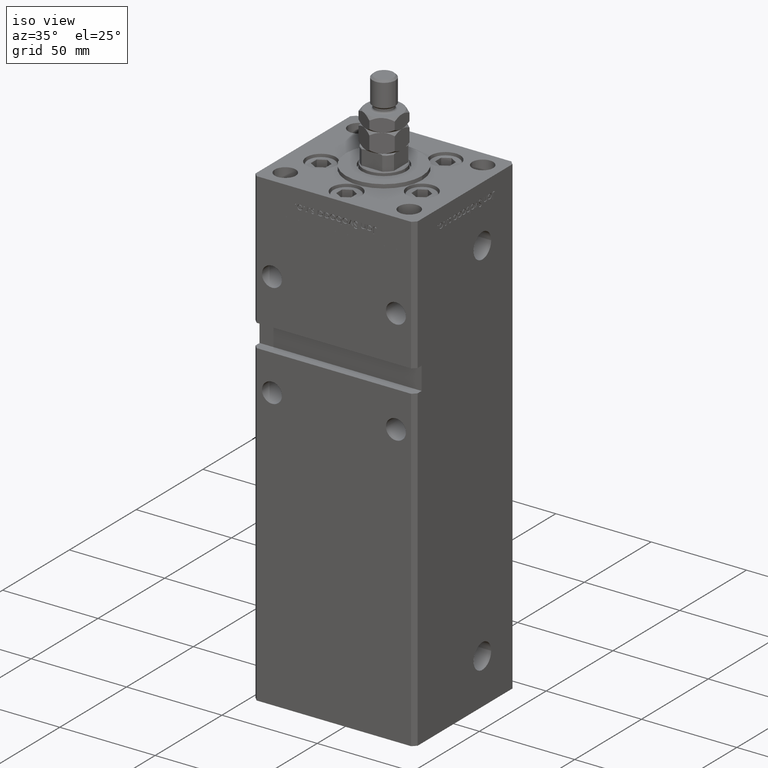
[diagram: clean part render]
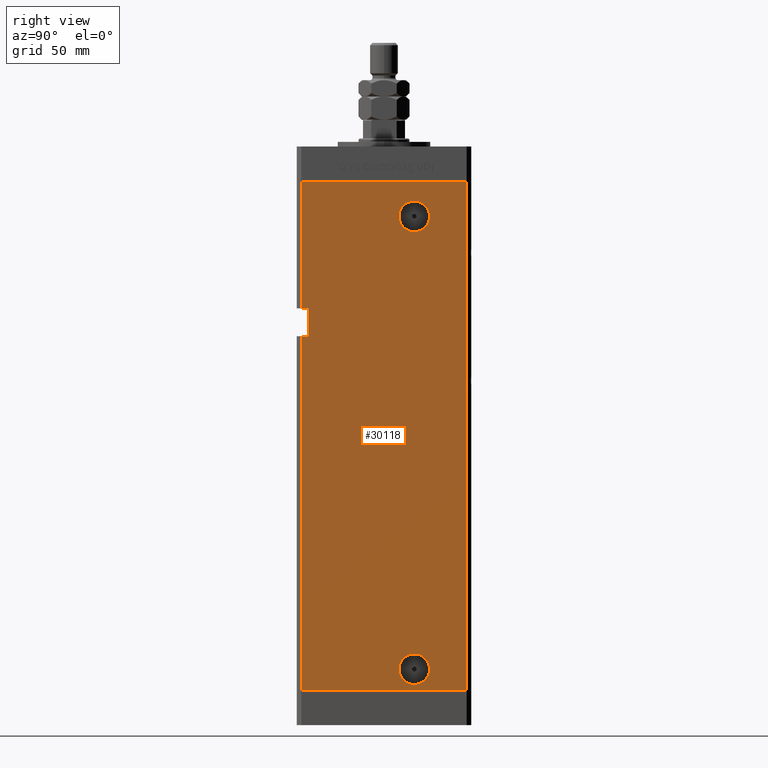
[diagram: tour spotlight — one face highlighted and labeled with its STEP entity id]
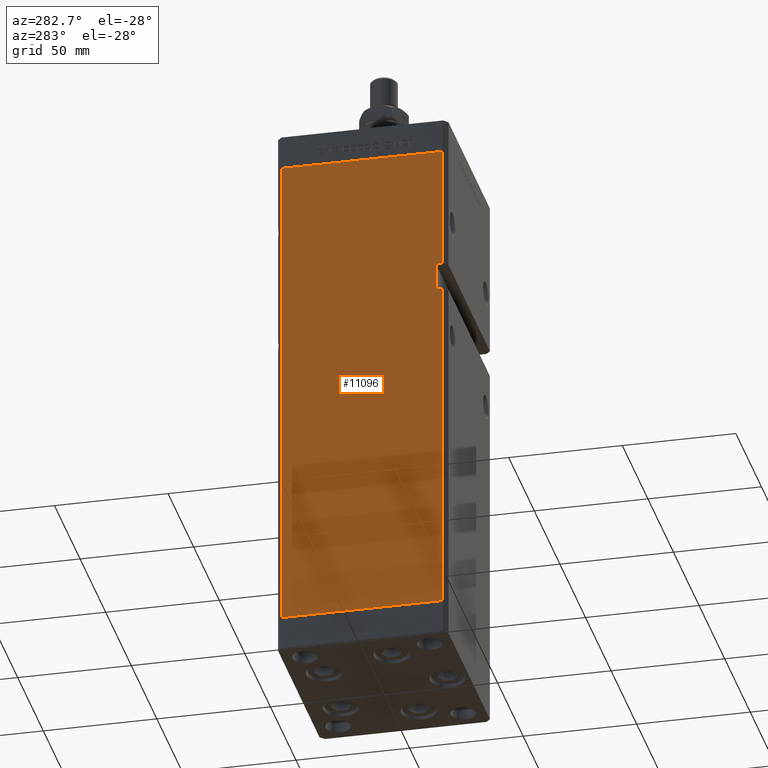
[diagram: tour spotlight — one face highlighted and labeled with its STEP entity id]
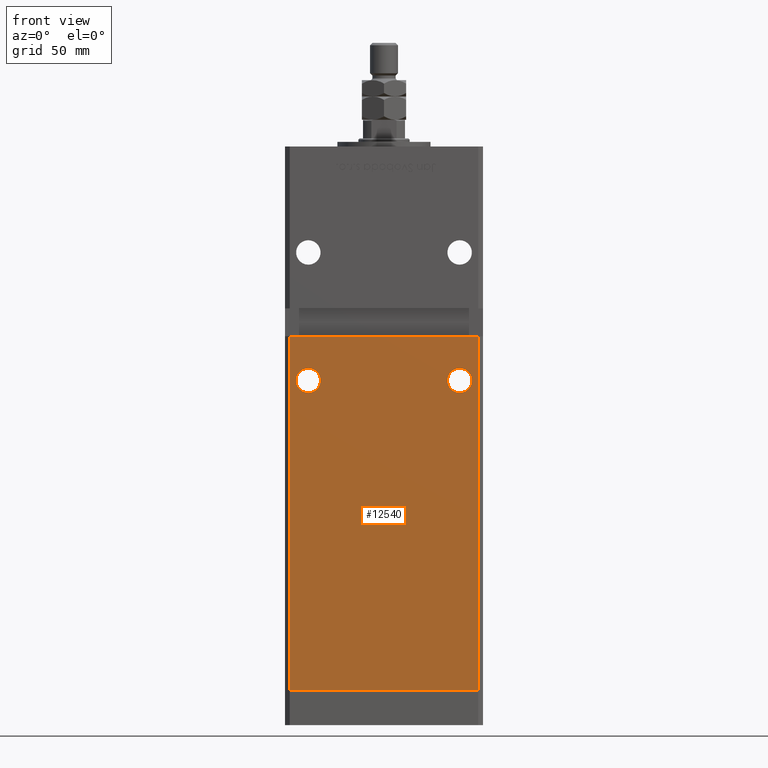
[diagram: tour spotlight — one face highlighted and labeled with its STEP entity id]
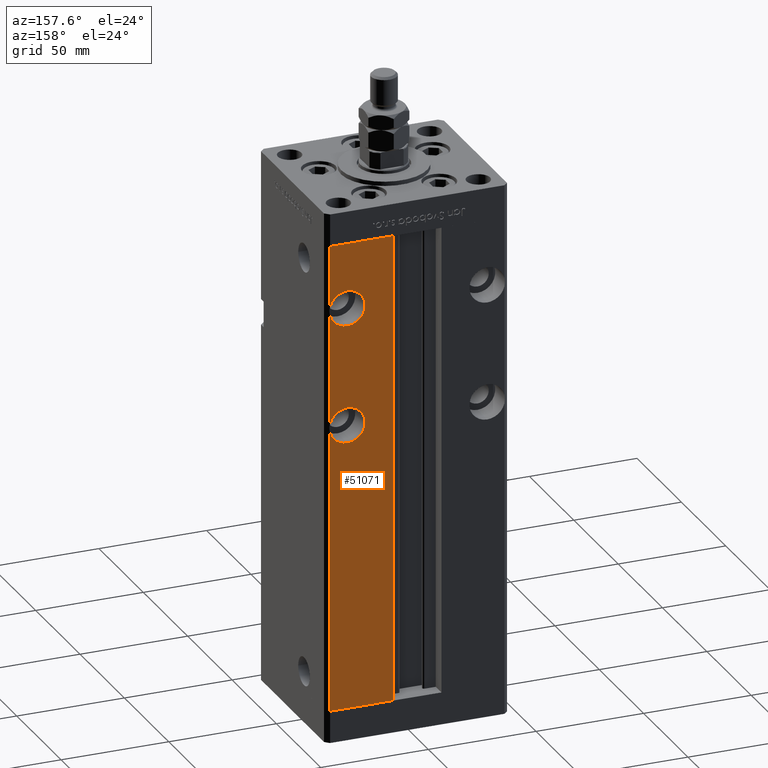
[diagram: tour spotlight — one face highlighted and labeled with its STEP entity id]
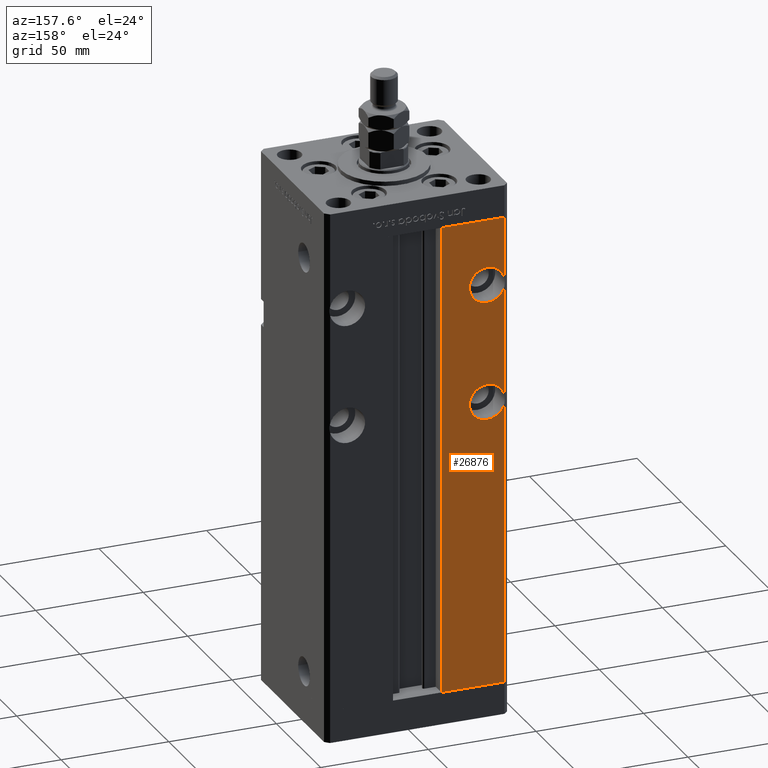
[diagram: tour spotlight — one face highlighted and labeled with its STEP entity id]
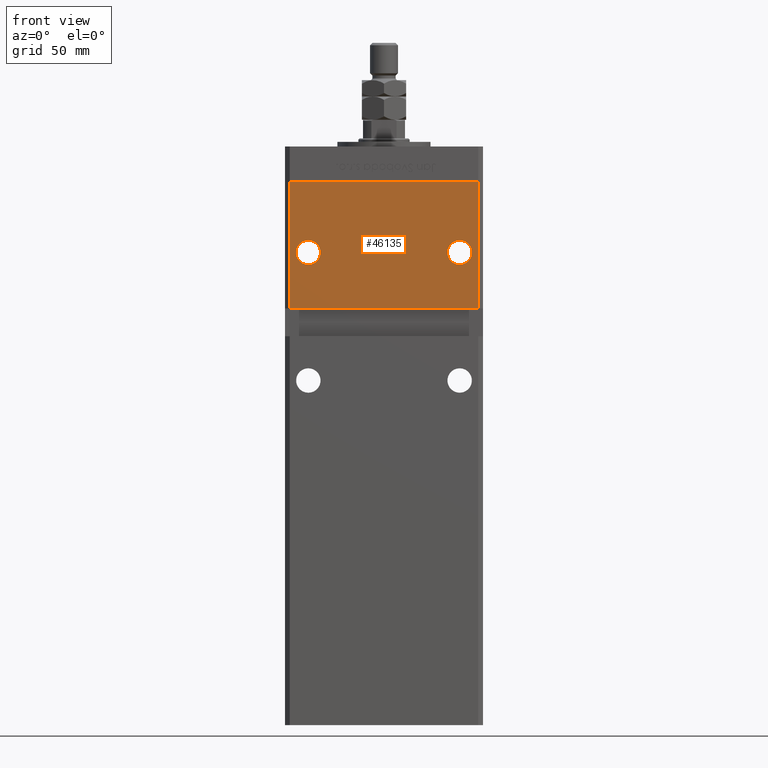
[diagram: tour spotlight — one face highlighted and labeled with its STEP entity id]
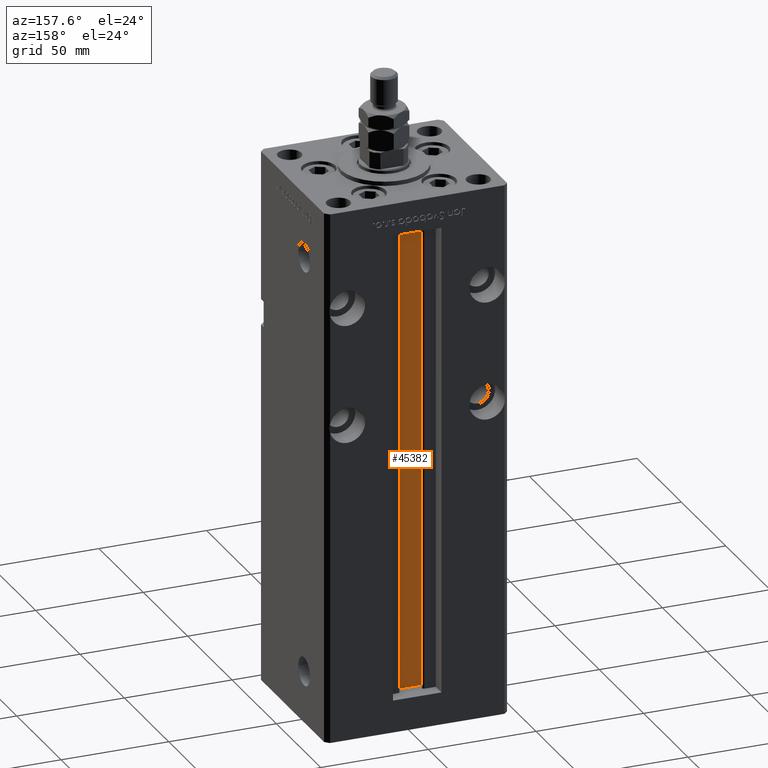
[diagram: tour spotlight — one face highlighted and labeled with its STEP entity id]
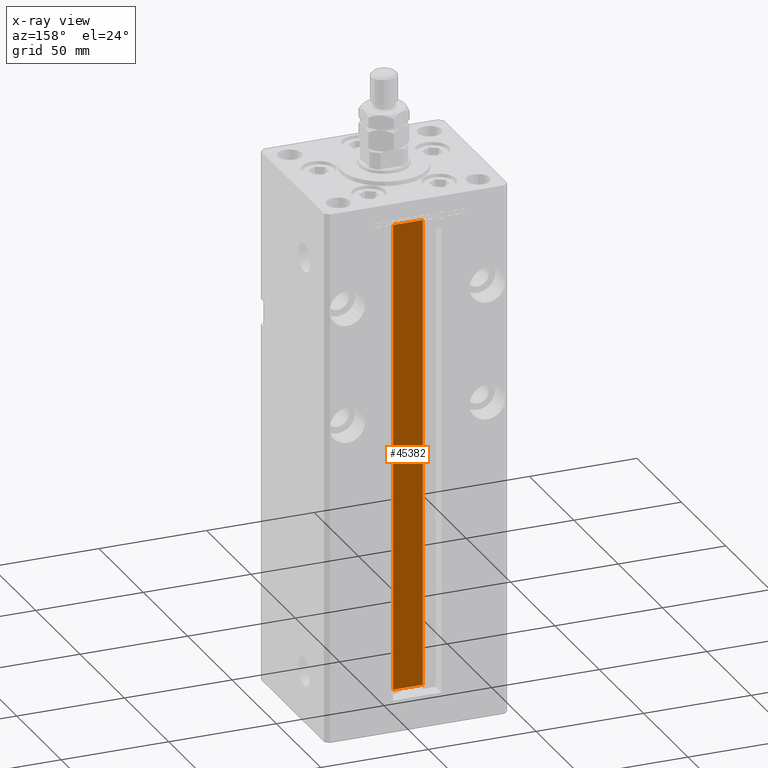
[diagram: x-ray of the same camera — body ghosted, this tour face saturated]
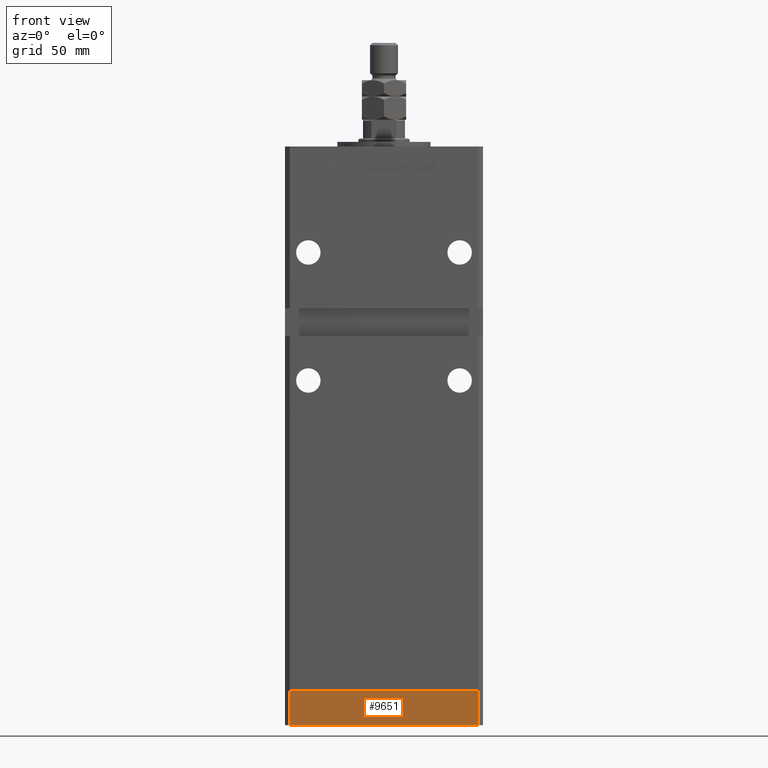
[diagram: tour spotlight — one face highlighted and labeled with its STEP entity id]
A machine part: a face-by-face anatomy tour. The part has 1263 B-rep faces; the first image is the clean iso view, then the 8 largest visible faces are spotlighted one at a time (largest first), each with its STEP entity span.

Face 1 — right view, entity #30118. In plain terms, the highlighted planar face has unit normal (1, -0, 0).
Definition (entity closure, byte-faithful):
#1570 = CIRCLE ( 'NONE', #13994, 6.580000000000016058 ) ;
#1621 = DIRECTION ( 'NONE',  ( 0.000000000000000000, 1.000000000000000000, 0.000000000000000000 ) ) ;
#2138 = ORIENTED_EDGE ( 'NONE', *, *, #40043, .F. ) ;
#2578 = LINE ( 'NONE', #37115, #34322 ) ;
#3219 = CARTESIAN_POINT ( 'NONE',  ( 42.50000000000001421, 35.50000000000000711, 0.000000000000000000 ) ) ;
#3393 = CARTESIAN_POINT ( 'NONE',  ( 42.49999999999998579, -32.50000000000000711, 152.0000000000000284 ) ) ;
#3407 = DIRECTION ( 'NONE',  ( 1.000000000000000000, -2.275047181608927644E-16, 0.000000000000000000 ) ) ;
#3633 = VERTEX_POINT ( 'NONE', #8731 ) ;
#3862 = DIRECTION ( 'NONE',  ( 3.909236002201255146E-16, 1.000000000000000000, 0.000000000000000000 ) ) ;
#5307 = EDGE_CURVE ( 'NONE', #41624, #45316, #41098, .T. ) ;
#6262 = VERTEX_POINT ( 'NONE', #53241 ) ;
#6912 = CIRCLE ( 'NONE', #39523, 6.580000000000002736 ) ;
#7663 = ORIENTED_EDGE ( 'NONE', *, *, #23966, .F. ) ;
#8552 = FACE_BOUND ( 'NONE', #20999, .T. ) ;
#8731 = CARTESIAN_POINT ( 'NONE',  ( 42.49999999999998579, -35.50000000000000711, 164.0000000000000284 ) ) ;
#9197 = CARTESIAN_POINT ( 'NONE',  ( 42.49999999999998579, -35.50000000000000711, 218.5000000000000000 ) ) ;
#9809 = EDGE_LOOP ( 'NONE', ( #28923, #18370, #30531, #7663, #17872, #12069, #27798, #2138 ) ) ;
#10905 = CARTESIAN_POINT ( 'NONE',  ( 42.49999999999998579, -32.50000000000000711, 164.0000000000000284 ) ) ;
#11493 = ORIENTED_EDGE ( 'NONE', *, *, #17022, .F. ) ;
#11614 = VERTEX_POINT ( 'NONE', #37685 ) ;
#11621 = DIRECTION ( 'NONE',  ( -0.000000000000000000, -0.000000000000000000, 1.000000000000000000 ) ) ;
#11692 = DIRECTION ( 'NONE',  ( -3.909236002201255146E-16, -1.000000000000000000, 0.000000000000000000 ) ) ;
#11891 = DIRECTION ( 'NONE',  ( 1.000000000000000000, -3.909236002201255146E-16, 0.000000000000000000 ) ) ;
#12069 = ORIENTED_EDGE ( 'NONE', *, *, #19070, .T. ) ;
#12120 = VERTEX_POINT ( 'NONE', #37653 ) ;
#12610 = DIRECTION ( 'NONE',  ( 1.000000000000000000, -2.275047181608927644E-16, 0.000000000000000000 ) ) ;
#13348 = DIRECTION ( 'NONE',  ( -0.000000000000000000, -0.000000000000000000, -1.000000000000000000 ) ) ;
#13994 = AXIS2_PLACEMENT_3D ( 'NONE', #22099, #51151, #18204 ) ;
#14692 = DIRECTION ( 'NONE',  ( -0.000000000000000000, -0.000000000000000000, -1.000000000000000000 ) ) ;
#14734 = EDGE_CURVE ( 'NONE', #16922, #23467, #2578, .T. ) ;
#15533 = VECTOR ( 'NONE', #52616, 1000.000000000000000 ) ;
#15577 = DIRECTION ( 'NONE',  ( 0.000000000000000000, 1.000000000000000000, 0.000000000000000000 ) ) ;
#15765 = CARTESIAN_POINT ( 'NONE',  ( 42.49999999999998579, -32.50000000000000711, 164.0000000000000284 ) ) ;
#16229 = EDGE_CURVE ( 'NONE', #30248, #12120, #6912, .T. ) ;
#16637 = EDGE_CURVE ( 'NONE', #18903, #34060, #41270, .T. ) ;
#16922 = VERTEX_POINT ( 'NONE', #21006 ) ;
#17022 = EDGE_CURVE ( 'NONE', #11614, #6262, #1570, .T. ) ;
#17284 = CARTESIAN_POINT ( 'NONE',  ( 42.50000000000000000, 12.99999999999998401, 203.5000000000000000 ) ) ;
#17872 = ORIENTED_EDGE ( 'NONE', *, *, #14734, .T. ) ;
#18204 = DIRECTION ( 'NONE',  ( 0.000000000000000000, 1.000000000000000000, 0.000000000000000000 ) ) ;
#18370 = ORIENTED_EDGE ( 'NONE', *, *, #22100, .T. ) ;
#18903 = VERTEX_POINT ( 'NONE', #46542 ) ;
#19070 = EDGE_CURVE ( 'NONE', #23467, #3633, #43473, .T. ) ;
#19232 = AXIS2_PLACEMENT_3D ( 'NONE', #24888, #11891, #3862 ) ;
#20074 = ORIENTED_EDGE ( 'NONE', *, *, #35447, .F. ) ;
#20999 = EDGE_LOOP ( 'NONE', ( #11493, #20074 ) ) ;
#21006 = CARTESIAN_POINT ( 'NONE',  ( 42.50000000000001421, 35.50000000000000711, 218.5000000000000000 ) ) ;
#22026 = VERTEX_POINT ( 'NONE', #10905 ) ;
#22099 = CARTESIAN_POINT ( 'NONE',  ( 42.50000000000000000, 12.99999999999998401, 203.5000000000000000 ) ) ;
#22100 = EDGE_CURVE ( 'NONE', #34060, #45316, #22733, .T. ) ;
#22732 = CARTESIAN_POINT ( 'NONE',  ( 42.50000000000001421, 35.50000000000000711, 218.5000000000000000 ) ) ;
#22733 = LINE ( 'NONE', #9197, #34571 ) ;
#23443 = VECTOR ( 'NONE', #54116, 1000.000000000000000 ) ;
#23467 = VERTEX_POINT ( 'NONE', #35646 ) ;
#23966 = EDGE_CURVE ( 'NONE', #16922, #41624, #31289, .T. ) ;
#24888 = CARTESIAN_POINT ( 'NONE',  ( 42.50000000000001421, 35.50000000000000711, 218.5000000000000000 ) ) ;
#25035 = ORIENTED_EDGE ( 'NONE', *, *, #16229, .F. ) ;
#25423 = FACE_BOUND ( 'NONE', #25934, .T. ) ;
#25683 = CARTESIAN_POINT ( 'NONE',  ( 42.50000000000000000, 12.99999999999997691, 9.000000000000007105 ) ) ;
#25934 = EDGE_LOOP ( 'NONE', ( #46875, #25035 ) ) ;
#27798 = ORIENTED_EDGE ( 'NONE', *, *, #33064, .F. ) ;
#28008 = DIRECTION ( 'NONE',  ( -0.000000000000000000, -1.000000000000000000, -0.000000000000000000 ) ) ;
#28068 = CARTESIAN_POINT ( 'NONE',  ( 42.49999999999998579, -35.50000000000000711, 0.000000000000000000 ) ) ;
#28923 = ORIENTED_EDGE ( 'NONE', *, *, #16637, .T. ) ;
#29042 = PLANE ( 'NONE',  #19232 ) ;
#30094 = VECTOR ( 'NONE', #14692, 1000.000000000000000 ) ;
#30118 = ADVANCED_FACE ( 'NONE', ( #46729, #25423, #8552 ), #29042, .T. ) ;
#30248 = VERTEX_POINT ( 'NONE', #52508 ) ;
#30531 = ORIENTED_EDGE ( 'NONE', *, *, #5307, .F. ) ;
#30575 = CARTESIAN_POINT ( 'NONE',  ( 42.49999999999998579, -35.50000000000000711, 152.0000000000000284 ) ) ;
#30748 = CIRCLE ( 'NONE', #51103, 6.580000000000016058 ) ;
#31270 = CARTESIAN_POINT ( 'NONE',  ( 42.49999999999998579, -35.50000000000000711, 218.5000000000000000 ) ) ;
#31289 = LINE ( 'NONE', #22732, #15533 ) ;
#33064 = EDGE_CURVE ( 'NONE', #22026, #3633, #40578, .T. ) ;
#34060 = VERTEX_POINT ( 'NONE', #30575 ) ;
#34142 = DIRECTION ( 'NONE',  ( 0.000000000000000000, 1.000000000000000000, 0.000000000000000000 ) ) ;
#34236 = VECTOR ( 'NONE', #28008, 1000.000000000000000 ) ;
#34322 = VECTOR ( 'NONE', #11692, 1000.000000000000000 ) ;
#34412 = VECTOR ( 'NONE', #11621, 1000.000000000000000 ) ;
#34571 = VECTOR ( 'NONE', #13348, 1000.000000000000000 ) ;
#35447 = EDGE_CURVE ( 'NONE', #6262, #11614, #30748, .T. ) ;
#35646 = CARTESIAN_POINT ( 'NONE',  ( 42.49999999999998579, -35.50000000000000711, 218.5000000000000000 ) ) ;
#36969 = CARTESIAN_POINT ( 'NONE',  ( 42.49999999999998579, -32.50000000000000711, 164.0000000000000284 ) ) ;
#37115 = CARTESIAN_POINT ( 'NONE',  ( 42.50000000000001421, 35.50000000000000711, 218.5000000000000000 ) ) ;
#37130 = CARTESIAN_POINT ( 'NONE',  ( 42.50000000000000000, 12.99999999999997691, 9.000000000000007105 ) ) ;
#37235 = DIRECTION ( 'NONE',  ( -0.000000000000000000, -1.000000000000000000, -0.000000000000000000 ) ) ;
#37653 = CARTESIAN_POINT ( 'NONE',  ( 42.50000000000000000, 19.57999999999998053, 9.000000000000007105 ) ) ;
#37685 = CARTESIAN_POINT ( 'NONE',  ( 42.50000000000000000, 19.58000000000000185, 203.5000000000000000 ) ) ;
#38750 = AXIS2_PLACEMENT_3D ( 'NONE', #37130, #3407, #15577 ) ;
#38870 = EDGE_CURVE ( 'NONE', #12120, #30248, #46766, .T. ) ;
#39502 = VECTOR ( 'NONE', #37235, 1000.000000000000000 ) ;
#39523 = AXIS2_PLACEMENT_3D ( 'NONE', #25683, #42828, #1621 ) ;
#40043 = EDGE_CURVE ( 'NONE', #18903, #22026, #41474, .T. ) ;
#40578 = LINE ( 'NONE', #36969, #39502 ) ;
#41098 = LINE ( 'NONE', #3219, #23443 ) ;
#41270 = LINE ( 'NONE', #3393, #34236 ) ;
#41474 = LINE ( 'NONE', #15765, #34412 ) ;
#41624 = VERTEX_POINT ( 'NONE', #53471 ) ;
#42828 = DIRECTION ( 'NONE',  ( 1.000000000000000000, -2.275047181608927644E-16, 0.000000000000000000 ) ) ;
#43473 = LINE ( 'NONE', #31270, #30094 ) ;
#45316 = VERTEX_POINT ( 'NONE', #28068 ) ;
#46542 = CARTESIAN_POINT ( 'NONE',  ( 42.49999999999998579, -32.50000000000000000, 152.0000000000000284 ) ) ;
#46729 = FACE_OUTER_BOUND ( 'NONE', #9809, .T. ) ;
#46766 = CIRCLE ( 'NONE', #38750, 6.580000000000002736 ) ;
#46875 = ORIENTED_EDGE ( 'NONE', *, *, #38870, .F. ) ;
#51103 = AXIS2_PLACEMENT_3D ( 'NONE', #17284, #12610, #34142 ) ;
#51151 = DIRECTION ( 'NONE',  ( 1.000000000000000000, -2.275047181608927644E-16, 0.000000000000000000 ) ) ;
#52508 = CARTESIAN_POINT ( 'NONE',  ( 42.50000000000000000, 6.419999999999973284, 9.000000000000007105 ) ) ;
#52616 = DIRECTION ( 'NONE',  ( -0.000000000000000000, -0.000000000000000000, -1.000000000000000000 ) ) ;
#53241 = CARTESIAN_POINT ( 'NONE',  ( 42.50000000000000000, 6.419999999999967955, 203.5000000000000000 ) ) ;
#53471 = CARTESIAN_POINT ( 'NONE',  ( 42.50000000000001421, 35.50000000000000711, 0.000000000000000000 ) ) ;
#54116 = DIRECTION ( 'NONE',  ( -3.909236002201255146E-16, -1.000000000000000000, 0.000000000000000000 ) ) ;

Face 2 — auxiliary view, entity #11096. In plain terms, the highlighted planar face has unit normal (1, 0, 0).
Definition (entity closure, byte-faithful):
#895 = CARTESIAN_POINT ( 'NONE',  ( -42.50000000000001421, 35.50000000000000711, 0.000000000000000000 ) ) ;
#1434 = CARTESIAN_POINT ( 'NONE',  ( -42.50000000000001421, 35.50000000000000711, 0.000000000000000000 ) ) ;
#3522 = VECTOR ( 'NONE', #36768, 1000.000000000000000 ) ;
#4414 = EDGE_CURVE ( 'NONE', #10584, #28731, #30740, .T. ) ;
#10179 = ORIENTED_EDGE ( 'NONE', *, *, #40012, .F. ) ;
#10584 = VERTEX_POINT ( 'NONE', #895 ) ;
#11096 = ADVANCED_FACE ( 'NONE', ( #34478 ), #51375, .F. ) ;
#13473 = DIRECTION ( 'NONE',  ( 1.000000000000000000, 3.909236002201255146E-16, -0.000000000000000000 ) ) ;
#13676 = CARTESIAN_POINT ( 'NONE',  ( -42.49999999999998579, -35.49999999999996447, 152.0000000000000284 ) ) ;
#13700 = CARTESIAN_POINT ( 'NONE',  ( -42.49999999999998579, -32.50000000000000711, 164.0000000000000284 ) ) ;
#13737 = DIRECTION ( 'NONE',  ( -3.909236002201255146E-16, 1.000000000000000000, 0.000000000000000000 ) ) ;
#13746 = LINE ( 'NONE', #39725, #22192 ) ;
#13964 = CARTESIAN_POINT ( 'NONE',  ( -42.50000000000001421, 35.50000000000000711, 218.5000000000000000 ) ) ;
#14054 = ORIENTED_EDGE ( 'NONE', *, *, #17629, .T. ) ;
#14598 = VERTEX_POINT ( 'NONE', #47496 ) ;
#15222 = ORIENTED_EDGE ( 'NONE', *, *, #4414, .T. ) ;
#16946 = VERTEX_POINT ( 'NONE', #50610 ) ;
#17259 = CARTESIAN_POINT ( 'NONE',  ( -42.49999999999998579, -32.50000000000000711, 164.0000000000000284 ) ) ;
#17449 = EDGE_CURVE ( 'NONE', #16946, #10584, #33035, .T. ) ;
#17629 = EDGE_CURVE ( 'NONE', #49395, #41223, #30793, .T. ) ;
#17844 = LINE ( 'NONE', #13964, #29775 ) ;
#19700 = EDGE_CURVE ( 'NONE', #49395, #48777, #44645, .T. ) ;
#21070 = VECTOR ( 'NONE', #37997, 1000.000000000000000 ) ;
#21645 = EDGE_CURVE ( 'NONE', #14598, #41223, #13746, .T. ) ;
#22019 = CARTESIAN_POINT ( 'NONE',  ( -42.49999999999998579, -35.50000000000000711, 218.5000000000000000 ) ) ;
#22192 = VECTOR ( 'NONE', #39178, 1000.000000000000000 ) ;
#22327 = CARTESIAN_POINT ( 'NONE',  ( -42.50000000000001421, 35.50000000000000711, 218.5000000000000000 ) ) ;
#23801 = CARTESIAN_POINT ( 'NONE',  ( -42.49999999999998579, -32.50000000000000711, 152.0000000000000284 ) ) ;
#26594 = DIRECTION ( 'NONE',  ( 3.909236002201255146E-16, -1.000000000000000000, 0.000000000000000000 ) ) ;
#27775 = ORIENTED_EDGE ( 'NONE', *, *, #17449, .T. ) ;
#28478 = EDGE_CURVE ( 'NONE', #16946, #14598, #17844, .T. ) ;
#28731 = VERTEX_POINT ( 'NONE', #54056 ) ;
#29775 = VECTOR ( 'NONE', #51869, 1000.000000000000000 ) ;
#30740 = LINE ( 'NONE', #1434, #36661 ) ;
#30793 = LINE ( 'NONE', #17259, #21070 ) ;
#31053 = VECTOR ( 'NONE', #38862, 1000.000000000000000 ) ;
#33035 = LINE ( 'NONE', #49930, #42227 ) ;
#34478 = FACE_OUTER_BOUND ( 'NONE', #38385, .T. ) ;
#35510 = VERTEX_POINT ( 'NONE', #13676 ) ;
#36661 = VECTOR ( 'NONE', #26594, 1000.000000000000000 ) ;
#36768 = DIRECTION ( 'NONE',  ( -0.000000000000000000, -1.000000000000000000, -0.000000000000000000 ) ) ;
#37040 = ORIENTED_EDGE ( 'NONE', *, *, #28478, .F. ) ;
#37585 = ORIENTED_EDGE ( 'NONE', *, *, #49445, .F. ) ;
#37997 = DIRECTION ( 'NONE',  ( -0.000000000000000000, -1.000000000000000000, -0.000000000000000000 ) ) ;
#38385 = EDGE_LOOP ( 'NONE', ( #37585, #10179, #47477, #14054, #47533, #37040, #27775, #15222 ) ) ;
#38862 = DIRECTION ( 'NONE',  ( -0.000000000000000000, -0.000000000000000000, -1.000000000000000000 ) ) ;
#39178 = DIRECTION ( 'NONE',  ( -0.000000000000000000, -0.000000000000000000, -1.000000000000000000 ) ) ;
#39725 = CARTESIAN_POINT ( 'NONE',  ( -42.49999999999998579, -35.50000000000000711, 218.5000000000000000 ) ) ;
#40012 = EDGE_CURVE ( 'NONE', #48777, #35510, #53663, .T. ) ;
#41223 = VERTEX_POINT ( 'NONE', #46393 ) ;
#41282 = AXIS2_PLACEMENT_3D ( 'NONE', #22327, #13473, #13737 ) ;
#42227 = VECTOR ( 'NONE', #50212, 1000.000000000000000 ) ;
#44645 = LINE ( 'NONE', #49072, #46876 ) ;
#46393 = CARTESIAN_POINT ( 'NONE',  ( -42.49999999999998579, -35.50000000000001421, 164.0000000000000284 ) ) ;
#46876 = VECTOR ( 'NONE', #53486, 1000.000000000000000 ) ;
#47477 = ORIENTED_EDGE ( 'NONE', *, *, #19700, .F. ) ;
#47496 = CARTESIAN_POINT ( 'NONE',  ( -42.49999999999998579, -35.50000000000000711, 218.5000000000000000 ) ) ;
#47533 = ORIENTED_EDGE ( 'NONE', *, *, #21645, .F. ) ;
#48777 = VERTEX_POINT ( 'NONE', #54325 ) ;
#49072 = CARTESIAN_POINT ( 'NONE',  ( -42.49999999999998579, -32.50000000000000711, 164.0000000000000284 ) ) ;
#49395 = VERTEX_POINT ( 'NONE', #13700 ) ;
#49445 = EDGE_CURVE ( 'NONE', #35510, #28731, #51881, .T. ) ;
#49930 = CARTESIAN_POINT ( 'NONE',  ( -42.50000000000001421, 35.50000000000000711, 218.5000000000000000 ) ) ;
#50212 = DIRECTION ( 'NONE',  ( -0.000000000000000000, -0.000000000000000000, -1.000000000000000000 ) ) ;
#50610 = CARTESIAN_POINT ( 'NONE',  ( -42.50000000000001421, 35.50000000000000711, 218.5000000000000000 ) ) ;
#51375 = PLANE ( 'NONE',  #41282 ) ;
#51869 = DIRECTION ( 'NONE',  ( 3.909236002201255146E-16, -1.000000000000000000, 0.000000000000000000 ) ) ;
#51881 = LINE ( 'NONE', #22019, #31053 ) ;
#53486 = DIRECTION ( 'NONE',  ( -5.782411586589351722E-16, 0.000000000000000000, -1.000000000000000000 ) ) ;
#53663 = LINE ( 'NONE', #23801, #3522 ) ;
#54056 = CARTESIAN_POINT ( 'NONE',  ( -42.49999999999998579, -35.50000000000000711, 0.000000000000000000 ) ) ;
#54325 = CARTESIAN_POINT ( 'NONE',  ( -42.49999999999998579, -32.50000000000000711, 152.0000000000000284 ) ) ;

Face 3 — front view, entity #12540. In plain terms, the highlighted planar face has unit normal (0, 1, 0).
Definition (entity closure, byte-faithful):
#95 = DIRECTION ( 'NONE',  ( 0.000000000000000000, 1.000000000000000000, 0.000000000000000000 ) ) ;
#962 = CIRCLE ( 'NONE', #2738, 5.250000000000004441 ) ;
#985 = VERTEX_POINT ( 'NONE', #38375 ) ;
#1054 = EDGE_LOOP ( 'NONE', ( #35198, #30658, #37328, #31041 ) ) ;
#1829 = DIRECTION ( 'NONE',  ( 0.000000000000000000, -0.000000000000000000, 1.000000000000000000 ) ) ;
#2738 = AXIS2_PLACEMENT_3D ( 'NONE', #4083, #16264, #12391 ) ;
#2793 = LINE ( 'NONE', #15238, #49360 ) ;
#4083 = CARTESIAN_POINT ( 'NONE',  ( -32.50000000000000000, -37.50000000000000711, 133.0000000000000000 ) ) ;
#7404 = CARTESIAN_POINT ( 'NONE',  ( 40.49999999999998579, -37.50000000000000711, 218.5000000000000000 ) ) ;
#8269 = CARTESIAN_POINT ( 'NONE',  ( -32.50000000000000000, -37.50000000000000711, 127.7500000000000000 ) ) ;
#8649 = CARTESIAN_POINT ( 'NONE',  ( 32.50000000000000000, -37.50000000000000711, 133.0000000000000000 ) ) ;
#9166 = ORIENTED_EDGE ( 'NONE', *, *, #26470, .T. ) ;
#9574 = DIRECTION ( 'NONE',  ( 0.000000000000000000, 1.000000000000000000, 0.000000000000000000 ) ) ;
#10376 = LINE ( 'NONE', #27252, #47864 ) ;
#11613 = AXIS2_PLACEMENT_3D ( 'NONE', #43365, #14039, #52488 ) ;
#12276 = ORIENTED_EDGE ( 'NONE', *, *, #48392, .T. ) ;
#12391 = DIRECTION ( 'NONE',  ( 0.000000000000000000, 0.000000000000000000, 1.000000000000000000 ) ) ;
#12540 = ADVANCED_FACE ( 'NONE', ( #22562, #39410, #13993 ), #52441, .F. ) ;
#13035 = CARTESIAN_POINT ( 'NONE',  ( 40.49999999999998579, -37.50000000000000711, 152.0000000000000284 ) ) ;
#13229 = EDGE_CURVE ( 'NONE', #52888, #49797, #2793, .T. ) ;
#13497 = CIRCLE ( 'NONE', #11613, 5.250000000000004441 ) ;
#13720 = DIRECTION ( 'NONE',  ( 0.000000000000000000, 1.000000000000000000, 0.000000000000000000 ) ) ;
#13993 = FACE_OUTER_BOUND ( 'NONE', #1054, .T. ) ;
#14039 = DIRECTION ( 'NONE',  ( 0.000000000000000000, 1.000000000000000000, 0.000000000000000000 ) ) ;
#14694 = CIRCLE ( 'NONE', #24456, 5.250000000000004441 ) ;
#14900 = EDGE_LOOP ( 'NONE', ( #24696, #50215 ) ) ;
#15238 = CARTESIAN_POINT ( 'NONE',  ( -42.49999999999998579, -37.50000000000000711, 152.0000000000000284 ) ) ;
#16264 = DIRECTION ( 'NONE',  ( 0.000000000000000000, 1.000000000000000000, 0.000000000000000000 ) ) ;
#16824 = AXIS2_PLACEMENT_3D ( 'NONE', #31138, #13720, #26985 ) ;
#16942 = DIRECTION ( 'NONE',  ( 0.000000000000000000, 0.000000000000000000, 1.000000000000000000 ) ) ;
#18151 = CARTESIAN_POINT ( 'NONE',  ( -32.50000000000000000, -37.50000000000000711, 138.2500000000000000 ) ) ;
#19185 = VERTEX_POINT ( 'NONE', #24097 ) ;
#20710 = EDGE_CURVE ( 'NONE', #32007, #42719, #962, .T. ) ;
#22562 = FACE_BOUND ( 'NONE', #14900, .T. ) ;
#22847 = CARTESIAN_POINT ( 'NONE',  ( 32.50000000000000000, -37.50000000000000711, 138.2500000000000000 ) ) ;
#23411 = CARTESIAN_POINT ( 'NONE',  ( 40.49999999999998579, -37.50000000000000711, 0.000000000000000000 ) ) ;
#24008 = VECTOR ( 'NONE', #53329, 1000.000000000000000 ) ;
#24097 = CARTESIAN_POINT ( 'NONE',  ( -40.49999999999998579, -37.50000000000000711, 0.000000000000000000 ) ) ;
#24456 = AXIS2_PLACEMENT_3D ( 'NONE', #8649, #95, #16942 ) ;
#24696 = ORIENTED_EDGE ( 'NONE', *, *, #42058, .T. ) ;
#26470 = EDGE_CURVE ( 'NONE', #42064, #985, #14694, .T. ) ;
#26842 = LINE ( 'NONE', #52032, #52285 ) ;
#26985 = DIRECTION ( 'NONE',  ( 0.000000000000000000, 0.000000000000000000, 1.000000000000000000 ) ) ;
#27252 = CARTESIAN_POINT ( 'NONE',  ( -40.49999999999998579, -37.50000000000000711, 0.000000000000000000 ) ) ;
#27952 = DIRECTION ( 'NONE',  ( 1.000000000000000000, 0.000000000000000000, 0.000000000000000000 ) ) ;
#30090 = CIRCLE ( 'NONE', #16824, 5.250000000000004441 ) ;
#30658 = ORIENTED_EDGE ( 'NONE', *, *, #13229, .F. ) ;
#30859 = CARTESIAN_POINT ( 'NONE',  ( -40.49999999999998579, -37.50000000000000711, 218.5000000000000000 ) ) ;
#31041 = ORIENTED_EDGE ( 'NONE', *, *, #50016, .T. ) ;
#31138 = CARTESIAN_POINT ( 'NONE',  ( -32.50000000000000000, -37.50000000000000711, 133.0000000000000000 ) ) ;
#31597 = AXIS2_PLACEMENT_3D ( 'NONE', #30859, #9574, #1829 ) ;
#32007 = VERTEX_POINT ( 'NONE', #8269 ) ;
#34457 = VERTEX_POINT ( 'NONE', #23411 ) ;
#35198 = ORIENTED_EDGE ( 'NONE', *, *, #49904, .F. ) ;
#36428 = LINE ( 'NONE', #7404, #24008 ) ;
#37328 = ORIENTED_EDGE ( 'NONE', *, *, #46638, .T. ) ;
#38375 = CARTESIAN_POINT ( 'NONE',  ( 32.50000000000000000, -37.50000000000000711, 127.7500000000000000 ) ) ;
#39410 = FACE_BOUND ( 'NONE', #40953, .T. ) ;
#40953 = EDGE_LOOP ( 'NONE', ( #9166, #12276 ) ) ;
#41141 = CARTESIAN_POINT ( 'NONE',  ( -40.49999999999998579, -37.50000000000000711, 152.0000000000000284 ) ) ;
#42058 = EDGE_CURVE ( 'NONE', #42719, #32007, #30090, .T. ) ;
#42064 = VERTEX_POINT ( 'NONE', #22847 ) ;
#42719 = VERTEX_POINT ( 'NONE', #18151 ) ;
#43365 = CARTESIAN_POINT ( 'NONE',  ( 32.50000000000000000, -37.50000000000000711, 133.0000000000000000 ) ) ;
#46638 = EDGE_CURVE ( 'NONE', #52888, #19185, #26842, .T. ) ;
#47864 = VECTOR ( 'NONE', #52438, 1000.000000000000000 ) ;
#48392 = EDGE_CURVE ( 'NONE', #985, #42064, #13497, .T. ) ;
#49360 = VECTOR ( 'NONE', #27952, 1000.000000000000000 ) ;
#49797 = VERTEX_POINT ( 'NONE', #13035 ) ;
#49904 = EDGE_CURVE ( 'NONE', #49797, #34457, #36428, .T. ) ;
#50016 = EDGE_CURVE ( 'NONE', #19185, #34457, #10376, .T. ) ;
#50215 = ORIENTED_EDGE ( 'NONE', *, *, #20710, .T. ) ;
#52032 = CARTESIAN_POINT ( 'NONE',  ( -40.49999999999998579, -37.50000000000000711, 218.5000000000000000 ) ) ;
#52285 = VECTOR ( 'NONE', #52299, 1000.000000000000000 ) ;
#52299 = DIRECTION ( 'NONE',  ( -0.000000000000000000, -0.000000000000000000, -1.000000000000000000 ) ) ;
#52438 = DIRECTION ( 'NONE',  ( 1.000000000000000000, 0.000000000000000000, 0.000000000000000000 ) ) ;
#52441 = PLANE ( 'NONE',  #31597 ) ;
#52488 = DIRECTION ( 'NONE',  ( 0.000000000000000000, 0.000000000000000000, 1.000000000000000000 ) ) ;
#52888 = VERTEX_POINT ( 'NONE', #41141 ) ;
#53329 = DIRECTION ( 'NONE',  ( -0.000000000000000000, -0.000000000000000000, -1.000000000000000000 ) ) ;

Face 4 — auxiliary view, entity #51071. In plain terms, the highlighted planar face has unit normal (0, -1, 0).
Definition (entity closure, byte-faithful):
#771 = CIRCLE ( 'NONE', #31661, 8.250000000000007105 ) ;
#1535 = DIRECTION ( 'NONE',  ( 0.000000000000000000, 1.000000000000000000, 0.000000000000000000 ) ) ;
#2854 = EDGE_CURVE ( 'NONE', #21671, #8107, #21590, .T. ) ;
#3911 = DIRECTION ( 'NONE',  ( -0.000000000000000000, -0.000000000000000000, -1.000000000000000000 ) ) ;
#4342 = ORIENTED_EDGE ( 'NONE', *, *, #12089, .T. ) ;
#4589 = DIRECTION ( 'NONE',  ( 0.000000000000000000, 0.000000000000000000, 1.000000000000000000 ) ) ;
#4936 = ORIENTED_EDGE ( 'NONE', *, *, #23780, .T. ) ;
#5313 = LINE ( 'NONE', #18569, #9406 ) ;
#6118 = VERTEX_POINT ( 'NONE', #13960 ) ;
#6191 = PLANE ( 'NONE',  #48781 ) ;
#8107 = VERTEX_POINT ( 'NONE', #29081 ) ;
#9406 = VECTOR ( 'NONE', #31015, 1000.000000000000000 ) ;
#9578 = AXIS2_PLACEMENT_3D ( 'NONE', #19648, #28503, #27678 ) ;
#10188 = VECTOR ( 'NONE', #33545, 1000.000000000000000 ) ;
#10501 = CARTESIAN_POINT ( 'NONE',  ( 11.24999999999999822, 37.50000000000000000, 0.000000000000000000 ) ) ;
#10801 = DIRECTION ( 'NONE',  ( -0.000000000000000000, -0.000000000000000000, -1.000000000000000000 ) ) ;
#11993 = LINE ( 'NONE', #41853, #10188 ) ;
#12089 = EDGE_CURVE ( 'NONE', #48637, #31947, #50943, .T. ) ;
#13215 = ORIENTED_EDGE ( 'NONE', *, *, #25818, .F. ) ;
#13224 = EDGE_CURVE ( 'NONE', #39516, #6118, #21075, .T. ) ;
#13375 = DIRECTION ( 'NONE',  ( -1.000000000000000000, 0.000000000000000000, 0.000000000000000000 ) ) ;
#13640 = AXIS2_PLACEMENT_3D ( 'NONE', #25861, #21441, #34413 ) ;
#13960 = CARTESIAN_POINT ( 'NONE',  ( 40.50000000000000711, 37.50000000000000000, 135.0155644370746018 ) ) ;
#14603 = ORIENTED_EDGE ( 'NONE', *, *, #24834, .F. ) ;
#14950 = ORIENTED_EDGE ( 'NONE', *, *, #36875, .T. ) ;
#15259 = CARTESIAN_POINT ( 'NONE',  ( 40.50000000000000711, 37.50000000000000000, 190.0155644370746586 ) ) ;
#15317 = CARTESIAN_POINT ( 'NONE',  ( 32.50000000000000000, 37.50000000000000000, 124.7500000000000000 ) ) ;
#15804 = VECTOR ( 'NONE', #3911, 1000.000000000000000 ) ;
#15999 = ORIENTED_EDGE ( 'NONE', *, *, #32316, .F. ) ;
#16496 = DIRECTION ( 'NONE',  ( 0.000000000000000000, 1.000000000000000000, -0.000000000000000000 ) ) ;
#16839 = EDGE_CURVE ( 'NONE', #21671, #6118, #24342, .T. ) ;
#16981 = CARTESIAN_POINT ( 'NONE',  ( 32.50000000000000000, 37.50000000000000000, 141.2500000000000284 ) ) ;
#17042 = CARTESIAN_POINT ( 'NONE',  ( 32.50000000000000000, 37.50000000000000000, 188.0000000000000000 ) ) ;
#17296 = CIRCLE ( 'NONE', #34062, 8.250000000000007105 ) ;
#17301 = DIRECTION ( 'NONE',  ( 0.000000000000000000, 1.000000000000000000, 0.000000000000000000 ) ) ;
#17460 = VECTOR ( 'NONE', #10801, 1000.000000000000000 ) ;
#17808 = DIRECTION ( 'NONE',  ( 0.000000000000000000, -1.000000000000000000, 0.000000000000000000 ) ) ;
#18569 = CARTESIAN_POINT ( 'NONE',  ( 40.50000000000000711, 37.50000000000000000, 218.5000000000000000 ) ) ;
#19648 = CARTESIAN_POINT ( 'NONE',  ( 32.50000000000000000, 37.50000000000000000, 133.0000000000000000 ) ) ;
#21075 = CIRCLE ( 'NONE', #9578, 8.250000000000007105 ) ;
#21262 = VERTEX_POINT ( 'NONE', #15259 ) ;
#21441 = DIRECTION ( 'NONE',  ( 0.000000000000000000, 1.000000000000000000, 0.000000000000000000 ) ) ;
#21470 = CARTESIAN_POINT ( 'NONE',  ( 32.50000000000000000, 37.50000000000000000, 133.0000000000000000 ) ) ;
#21590 = CIRCLE ( 'NONE', #13640, 8.250000000000007105 ) ;
#21671 = VERTEX_POINT ( 'NONE', #22334 ) ;
#22334 = CARTESIAN_POINT ( 'NONE',  ( 40.50000000000000711, 37.50000000000000000, 185.9844355629253414 ) ) ;
#22774 = DIRECTION ( 'NONE',  ( 0.000000000000000000, -0.000000000000000000, -1.000000000000000000 ) ) ;
#23049 = FACE_OUTER_BOUND ( 'NONE', #42197, .T. ) ;
#23780 = EDGE_CURVE ( 'NONE', #32743, #48637, #11993, .T. ) ;
#24342 = LINE ( 'NONE', #52854, #17460 ) ;
#24834 = EDGE_CURVE ( 'NONE', #34310, #21262, #17296, .T. ) ;
#25129 = CARTESIAN_POINT ( 'NONE',  ( 40.50000000000000711, 37.50000000000000000, 218.5000000000000000 ) ) ;
#25366 = ORIENTED_EDGE ( 'NONE', *, *, #2854, .F. ) ;
#25763 = DIRECTION ( 'NONE',  ( 1.000000000000000000, 0.000000000000000000, 0.000000000000000000 ) ) ;
#25818 = EDGE_CURVE ( 'NONE', #43170, #39516, #50917, .T. ) ;
#25861 = CARTESIAN_POINT ( 'NONE',  ( 32.50000000000000000, 37.50000000000000000, 188.0000000000000000 ) ) ;
#26092 = CARTESIAN_POINT ( 'NONE',  ( -11.24999999999999822, 37.50000000000000000, 0.000000000000000000 ) ) ;
#26145 = AXIS2_PLACEMENT_3D ( 'NONE', #21470, #16496, #38319 ) ;
#26634 = EDGE_CURVE ( 'NONE', #27938, #47191, #5313, .T. ) ;
#26686 = CARTESIAN_POINT ( 'NONE',  ( 32.50000000000000000, 37.50000000000000000, 133.0000000000000000 ) ) ;
#27678 = DIRECTION ( 'NONE',  ( 0.000000000000000000, 0.000000000000000000, -1.000000000000000000 ) ) ;
#27938 = VERTEX_POINT ( 'NONE', #29893 ) ;
#28113 = ORIENTED_EDGE ( 'NONE', *, *, #33196, .F. ) ;
#28503 = DIRECTION ( 'NONE',  ( 0.000000000000000000, 1.000000000000000000, -0.000000000000000000 ) ) ;
#28647 = ORIENTED_EDGE ( 'NONE', *, *, #13224, .F. ) ;
#28907 = AXIS2_PLACEMENT_3D ( 'NONE', #17042, #17301, #4589 ) ;
#29081 = CARTESIAN_POINT ( 'NONE',  ( 32.50000000000000000, 37.50000000000000000, 179.7500000000000000 ) ) ;
#29111 = CARTESIAN_POINT ( 'NONE',  ( -11.24999999999999822, 37.50000000000000000, 218.5000000000000000 ) ) ;
#29893 = CARTESIAN_POINT ( 'NONE',  ( 40.50000000000000711, 37.50000000000000000, 130.9844355629253982 ) ) ;
#29950 = EDGE_CURVE ( 'NONE', #47191, #32743, #39072, .T. ) ;
#31015 = DIRECTION ( 'NONE',  ( -0.000000000000000000, -0.000000000000000000, -1.000000000000000000 ) ) ;
#31109 = CARTESIAN_POINT ( 'NONE',  ( 11.24999999999999112, 37.50000000000000000, 218.5000000000000000 ) ) ;
#31661 = AXIS2_PLACEMENT_3D ( 'NONE', #26686, #44387, #48262 ) ;
#31947 = VERTEX_POINT ( 'NONE', #25129 ) ;
#32316 = EDGE_CURVE ( 'NONE', #27938, #43170, #771, .T. ) ;
#32743 = VERTEX_POINT ( 'NONE', #10501 ) ;
#33196 = EDGE_CURVE ( 'NONE', #8107, #34310, #33313, .T. ) ;
#33313 = CIRCLE ( 'NONE', #28907, 8.250000000000007105 ) ;
#33545 = DIRECTION ( 'NONE',  ( -0.000000000000000000, -0.000000000000000000, 1.000000000000000000 ) ) ;
#34062 = AXIS2_PLACEMENT_3D ( 'NONE', #35251, #1535, #52151 ) ;
#34310 = VERTEX_POINT ( 'NONE', #46952 ) ;
#34413 = DIRECTION ( 'NONE',  ( 0.000000000000000000, 0.000000000000000000, 1.000000000000000000 ) ) ;
#35251 = CARTESIAN_POINT ( 'NONE',  ( 32.50000000000000000, 37.50000000000000000, 188.0000000000000000 ) ) ;
#36023 = VECTOR ( 'NONE', #25763, 1000.000000000000000 ) ;
#36875 = EDGE_CURVE ( 'NONE', #31947, #21262, #38173, .T. ) ;
#38171 = ORIENTED_EDGE ( 'NONE', *, *, #29950, .T. ) ;
#38173 = LINE ( 'NONE', #50657, #15804 ) ;
#38319 = DIRECTION ( 'NONE',  ( 0.000000000000000000, 0.000000000000000000, -1.000000000000000000 ) ) ;
#38621 = ORIENTED_EDGE ( 'NONE', *, *, #26634, .T. ) ;
#39072 = LINE ( 'NONE', #26092, #45746 ) ;
#39515 = CARTESIAN_POINT ( 'NONE',  ( 40.50000000000000711, 37.50000000000000000, 0.000000000000000000 ) ) ;
#39516 = VERTEX_POINT ( 'NONE', #16981 ) ;
#40576 = ORIENTED_EDGE ( 'NONE', *, *, #16839, .T. ) ;
#41853 = CARTESIAN_POINT ( 'NONE',  ( 11.24999999999999822, 37.50000000000000000, 0.000000000000000000 ) ) ;
#42197 = EDGE_LOOP ( 'NONE', ( #40576, #28647, #13215, #15999, #38621, #38171, #4936, #4342, #14950, #14603, #28113, #25366 ) ) ;
#43170 = VERTEX_POINT ( 'NONE', #15317 ) ;
#44387 = DIRECTION ( 'NONE',  ( 0.000000000000000000, 1.000000000000000000, -0.000000000000000000 ) ) ;
#45746 = VECTOR ( 'NONE', #13375, 1000.000000000000000 ) ;
#46952 = CARTESIAN_POINT ( 'NONE',  ( 32.50000000000000000, 37.50000000000000000, 196.2500000000000000 ) ) ;
#47191 = VERTEX_POINT ( 'NONE', #39515 ) ;
#48262 = DIRECTION ( 'NONE',  ( 0.000000000000000000, 0.000000000000000000, -1.000000000000000000 ) ) ;
#48637 = VERTEX_POINT ( 'NONE', #31109 ) ;
#48781 = AXIS2_PLACEMENT_3D ( 'NONE', #51833, #17808, #22774 ) ;
#50657 = CARTESIAN_POINT ( 'NONE',  ( 40.50000000000000711, 37.50000000000000000, 218.5000000000000000 ) ) ;
#50917 = CIRCLE ( 'NONE', #26145, 8.250000000000007105 ) ;
#50943 = LINE ( 'NONE', #29111, #36023 ) ;
#51071 = ADVANCED_FACE ( 'NONE', ( #23049 ), #6191, .F. ) ;
#51833 = CARTESIAN_POINT ( 'NONE',  ( -11.24999999999999822, 37.50000000000000000, 218.5000000000000000 ) ) ;
#52151 = DIRECTION ( 'NONE',  ( 0.000000000000000000, 0.000000000000000000, 1.000000000000000000 ) ) ;
#52854 = CARTESIAN_POINT ( 'NONE',  ( 40.50000000000000711, 37.50000000000000000, 218.5000000000000000 ) ) ;

Face 5 — auxiliary view, entity #26876. In plain terms, the highlighted planar face has unit normal (0, -1, 0).
Definition (entity closure, byte-faithful):
#126 = DIRECTION ( 'NONE',  ( 0.000000000000000000, 0.000000000000000000, 1.000000000000000000 ) ) ;
#1278 = DIRECTION ( 'NONE',  ( -0.000000000000000000, -0.000000000000000000, -1.000000000000000000 ) ) ;
#1366 = EDGE_CURVE ( 'NONE', #8041, #23082, #43624, .T. ) ;
#1668 = VERTEX_POINT ( 'NONE', #3003 ) ;
#1966 = CARTESIAN_POINT ( 'NONE',  ( -32.50000000000000000, 37.50000000000000000, 188.0000000000000000 ) ) ;
#2009 = EDGE_CURVE ( 'NONE', #26189, #4587, #42789, .T. ) ;
#2255 = DIRECTION ( 'NONE',  ( 0.000000000000000000, 0.000000000000000000, -1.000000000000000000 ) ) ;
#2343 = CARTESIAN_POINT ( 'NONE',  ( -11.24999999999999822, 37.50000000000000000, 0.000000000000000000 ) ) ;
#2539 = PLANE ( 'NONE',  #21761 ) ;
#3003 = CARTESIAN_POINT ( 'NONE',  ( -32.50000000000000000, 37.50000000000000000, 196.2500000000000000 ) ) ;
#3100 = LINE ( 'NONE', #6705, #25508 ) ;
#4587 = VERTEX_POINT ( 'NONE', #35974 ) ;
#5527 = CARTESIAN_POINT ( 'NONE',  ( -32.50000000000000000, 37.50000000000000000, 124.7500000000000000 ) ) ;
#6051 = VECTOR ( 'NONE', #19743, 1000.000000000000000 ) ;
#6683 = FACE_OUTER_BOUND ( 'NONE', #26446, .T. ) ;
#6703 = CARTESIAN_POINT ( 'NONE',  ( -40.50000000000000711, 37.50000000000000000, 0.000000000000000000 ) ) ;
#6705 = CARTESIAN_POINT ( 'NONE',  ( -11.24999999999999822, 37.50000000000000000, 0.000000000000000000 ) ) ;
#6936 = ORIENTED_EDGE ( 'NONE', *, *, #54579, .F. ) ;
#8041 = VERTEX_POINT ( 'NONE', #28532 ) ;
#8084 = CARTESIAN_POINT ( 'NONE',  ( -40.50000000000000711, 37.50000000000000000, 218.5000000000000000 ) ) ;
#8395 = DIRECTION ( 'NONE',  ( 0.000000000000000000, 1.000000000000000000, 0.000000000000000000 ) ) ;
#8542 = EDGE_CURVE ( 'NONE', #1668, #8041, #23565, .T. ) ;
#8767 = VERTEX_POINT ( 'NONE', #22274 ) ;
#9213 = VERTEX_POINT ( 'NONE', #6703 ) ;
#9215 = CARTESIAN_POINT ( 'NONE',  ( -32.50000000000000000, 37.50000000000000000, 133.0000000000000000 ) ) ;
#10542 = CARTESIAN_POINT ( 'NONE',  ( -32.50000000000000000, 37.50000000000000000, 133.0000000000000000 ) ) ;
#11902 = DIRECTION ( 'NONE',  ( 0.000000000000000000, 0.000000000000000000, -1.000000000000000000 ) ) ;
#12433 = ORIENTED_EDGE ( 'NONE', *, *, #2009, .F. ) ;
#13029 = AXIS2_PLACEMENT_3D ( 'NONE', #46298, #8395, #25260 ) ;
#13335 = CARTESIAN_POINT ( 'NONE',  ( -11.24999999999999822, 37.50000000000000000, 0.000000000000000000 ) ) ;
#13753 = DIRECTION ( 'NONE',  ( 0.000000000000000000, 1.000000000000000000, -0.000000000000000000 ) ) ;
#14183 = LINE ( 'NONE', #39609, #18708 ) ;
#14279 = VECTOR ( 'NONE', #1278, 1000.000000000000000 ) ;
#14525 = CARTESIAN_POINT ( 'NONE',  ( -40.50000000000000711, 37.50000000000000000, 218.5000000000000000 ) ) ;
#16550 = CIRCLE ( 'NONE', #13029, 8.250000000000007105 ) ;
#17122 = AXIS2_PLACEMENT_3D ( 'NONE', #1966, #18826, #11902 ) ;
#17297 = LINE ( 'NONE', #46639, #48151 ) ;
#17634 = DIRECTION ( 'NONE',  ( 0.000000000000000000, 0.000000000000000000, -1.000000000000000000 ) ) ;
#18659 = LINE ( 'NONE', #2343, #45154 ) ;
#18708 = VECTOR ( 'NONE', #26898, 1000.000000000000000 ) ;
#18826 = DIRECTION ( 'NONE',  ( 0.000000000000000000, 1.000000000000000000, -0.000000000000000000 ) ) ;
#19399 = DIRECTION ( 'NONE',  ( 0.000000000000000000, -1.000000000000000000, 0.000000000000000000 ) ) ;
#19697 = ORIENTED_EDGE ( 'NONE', *, *, #35692, .F. ) ;
#19717 = ORIENTED_EDGE ( 'NONE', *, *, #8542, .F. ) ;
#19743 = DIRECTION ( 'NONE',  ( -0.000000000000000000, -0.000000000000000000, -1.000000000000000000 ) ) ;
#19954 = DIRECTION ( 'NONE',  ( -1.000000000000000000, 0.000000000000000000, 0.000000000000000000 ) ) ;
#20249 = VERTEX_POINT ( 'NONE', #5527 ) ;
#20307 = CARTESIAN_POINT ( 'NONE',  ( -11.24999999999999822, 37.50000000000000000, 218.5000000000000000 ) ) ;
#21761 = AXIS2_PLACEMENT_3D ( 'NONE', #23551, #19399, #36259 ) ;
#21783 = AXIS2_PLACEMENT_3D ( 'NONE', #25669, #13753, #17634 ) ;
#22221 = ORIENTED_EDGE ( 'NONE', *, *, #49648, .T. ) ;
#22274 = CARTESIAN_POINT ( 'NONE',  ( -40.50000000000000711, 37.50000000000000000, 190.0155644370746302 ) ) ;
#22650 = EDGE_CURVE ( 'NONE', #39693, #8767, #17297, .T. ) ;
#22697 = ORIENTED_EDGE ( 'NONE', *, *, #32593, .F. ) ;
#23082 = VERTEX_POINT ( 'NONE', #23835 ) ;
#23551 = CARTESIAN_POINT ( 'NONE',  ( -11.24999999999999822, 37.50000000000000000, 218.5000000000000000 ) ) ;
#23565 = CIRCLE ( 'NONE', #21783, 8.250000000000007105 ) ;
#23835 = CARTESIAN_POINT ( 'NONE',  ( -40.50000000000000711, 37.50000000000000000, 185.9844355629253698 ) ) ;
#23885 = ORIENTED_EDGE ( 'NONE', *, *, #22650, .F. ) ;
#25260 = DIRECTION ( 'NONE',  ( 0.000000000000000000, 0.000000000000000000, 1.000000000000000000 ) ) ;
#25508 = VECTOR ( 'NONE', #19954, 1000.000000000000000 ) ;
#25546 = ORIENTED_EDGE ( 'NONE', *, *, #36750, .T. ) ;
#25669 = CARTESIAN_POINT ( 'NONE',  ( -32.50000000000000000, 37.50000000000000000, 188.0000000000000000 ) ) ;
#26189 = VERTEX_POINT ( 'NONE', #28379 ) ;
#26446 = EDGE_LOOP ( 'NONE', ( #19697, #37717, #19717, #6936, #23885, #22221, #39612, #25546, #34554, #30169, #22697, #12433 ) ) ;
#26560 = VERTEX_POINT ( 'NONE', #13335 ) ;
#26793 = AXIS2_PLACEMENT_3D ( 'NONE', #40123, #35423, #2255 ) ;
#26876 = ADVANCED_FACE ( 'NONE', ( #6683 ), #2539, .F. ) ;
#26898 = DIRECTION ( 'NONE',  ( 1.000000000000000000, 0.000000000000000000, 0.000000000000000000 ) ) ;
#27687 = DIRECTION ( 'NONE',  ( 0.000000000000000000, 1.000000000000000000, 0.000000000000000000 ) ) ;
#28048 = CARTESIAN_POINT ( 'NONE',  ( -40.50000000000000711, 37.50000000000000000, 218.5000000000000000 ) ) ;
#28379 = CARTESIAN_POINT ( 'NONE',  ( -40.50000000000000711, 37.50000000000000000, 135.0155644370746302 ) ) ;
#28532 = CARTESIAN_POINT ( 'NONE',  ( -32.50000000000000000, 37.50000000000000000, 179.7500000000000000 ) ) ;
#29693 = DIRECTION ( 'NONE',  ( 0.000000000000000000, 1.000000000000000000, 0.000000000000000000 ) ) ;
#29817 = CIRCLE ( 'NONE', #32452, 8.250000000000007105 ) ;
#30169 = ORIENTED_EDGE ( 'NONE', *, *, #33510, .F. ) ;
#30835 = DIRECTION ( 'NONE',  ( -0.000000000000000000, -0.000000000000000000, 1.000000000000000000 ) ) ;
#31383 = LINE ( 'NONE', #14525, #14279 ) ;
#32184 = LINE ( 'NONE', #28048, #6051 ) ;
#32452 = AXIS2_PLACEMENT_3D ( 'NONE', #9215, #29693, #126 ) ;
#32593 = EDGE_CURVE ( 'NONE', #4587, #20249, #16550, .T. ) ;
#33510 = EDGE_CURVE ( 'NONE', #20249, #38191, #29817, .T. ) ;
#34554 = ORIENTED_EDGE ( 'NONE', *, *, #50073, .F. ) ;
#35423 = DIRECTION ( 'NONE',  ( 0.000000000000000000, 1.000000000000000000, -0.000000000000000000 ) ) ;
#35692 = EDGE_CURVE ( 'NONE', #23082, #26189, #32184, .T. ) ;
#35974 = CARTESIAN_POINT ( 'NONE',  ( -32.50000000000000000, 37.50000000000000000, 141.2500000000000284 ) ) ;
#36259 = DIRECTION ( 'NONE',  ( 0.000000000000000000, -0.000000000000000000, -1.000000000000000000 ) ) ;
#36750 = EDGE_CURVE ( 'NONE', #26560, #9213, #3100, .T. ) ;
#37717 = ORIENTED_EDGE ( 'NONE', *, *, #1366, .F. ) ;
#38040 = DIRECTION ( 'NONE',  ( -0.000000000000000000, -0.000000000000000000, -1.000000000000000000 ) ) ;
#38191 = VERTEX_POINT ( 'NONE', #50881 ) ;
#38346 = AXIS2_PLACEMENT_3D ( 'NONE', #10542, #27687, #40680 ) ;
#39609 = CARTESIAN_POINT ( 'NONE',  ( -11.24999999999999822, 37.50000000000000000, 218.5000000000000000 ) ) ;
#39612 = ORIENTED_EDGE ( 'NONE', *, *, #44328, .F. ) ;
#39693 = VERTEX_POINT ( 'NONE', #8084 ) ;
#40123 = CARTESIAN_POINT ( 'NONE',  ( -32.50000000000000000, 37.50000000000000000, 188.0000000000000000 ) ) ;
#40680 = DIRECTION ( 'NONE',  ( 0.000000000000000000, 0.000000000000000000, 1.000000000000000000 ) ) ;
#42789 = CIRCLE ( 'NONE', #38346, 8.250000000000007105 ) ;
#43624 = CIRCLE ( 'NONE', #17122, 8.250000000000007105 ) ;
#44328 = EDGE_CURVE ( 'NONE', #26560, #48775, #18659, .T. ) ;
#45154 = VECTOR ( 'NONE', #30835, 1000.000000000000000 ) ;
#46298 = CARTESIAN_POINT ( 'NONE',  ( -32.50000000000000000, 37.50000000000000000, 133.0000000000000000 ) ) ;
#46639 = CARTESIAN_POINT ( 'NONE',  ( -40.50000000000000711, 37.50000000000000000, 218.5000000000000000 ) ) ;
#48151 = VECTOR ( 'NONE', #38040, 1000.000000000000000 ) ;
#48775 = VERTEX_POINT ( 'NONE', #20307 ) ;
#49648 = EDGE_CURVE ( 'NONE', #39693, #48775, #14183, .T. ) ;
#50073 = EDGE_CURVE ( 'NONE', #38191, #9213, #31383, .T. ) ;
#50881 = CARTESIAN_POINT ( 'NONE',  ( -40.50000000000000711, 37.50000000000000000, 130.9844355629253698 ) ) ;
#51562 = CIRCLE ( 'NONE', #26793, 8.250000000000007105 ) ;
#54579 = EDGE_CURVE ( 'NONE', #8767, #1668, #51562, .T. ) ;

Face 6 — front view, entity #46135. In plain terms, the highlighted planar face has unit normal (0, 1, 0).
Definition (entity closure, byte-faithful):
#1165 = DIRECTION ( 'NONE',  ( 0.000000000000000000, 0.000000000000000000, 1.000000000000000000 ) ) ;
#1250 = CARTESIAN_POINT ( 'NONE',  ( -40.49999999999998579, -37.50000000000000711, 218.5000000000000000 ) ) ;
#1617 = AXIS2_PLACEMENT_3D ( 'NONE', #30720, #44759, #48643 ) ;
#1650 = DIRECTION ( 'NONE',  ( 0.000000000000000000, 1.000000000000000000, 0.000000000000000000 ) ) ;
#2262 = CARTESIAN_POINT ( 'NONE',  ( 40.49999999999998579, -37.50000000000000711, 218.5000000000000000 ) ) ;
#2482 = EDGE_LOOP ( 'NONE', ( #27588, #42989, #46912, #35792 ) ) ;
#4577 = AXIS2_PLACEMENT_3D ( 'NONE', #7131, #23444, #23996 ) ;
#4717 = EDGE_CURVE ( 'NONE', #31560, #15144, #7497, .T. ) ;
#5843 = DIRECTION ( 'NONE',  ( 0.000000000000000000, 1.000000000000000000, 0.000000000000000000 ) ) ;
#7131 = CARTESIAN_POINT ( 'NONE',  ( -40.49999999999998579, -37.50000000000000711, 218.5000000000000000 ) ) ;
#7497 = LINE ( 'NONE', #20213, #49081 ) ;
#8412 = EDGE_CURVE ( 'NONE', #19724, #31560, #33687, .T. ) ;
#10444 = AXIS2_PLACEMENT_3D ( 'NONE', #26857, #5843, #1165 ) ;
#10723 = FACE_OUTER_BOUND ( 'NONE', #2482, .T. ) ;
#12167 = EDGE_CURVE ( 'NONE', #40761, #28494, #36896, .T. ) ;
#12490 = CARTESIAN_POINT ( 'NONE',  ( 40.49999999999997868, -37.50000000000000711, 164.0000000000000284 ) ) ;
#13011 = AXIS2_PLACEMENT_3D ( 'NONE', #22651, #1650, #31213 ) ;
#13838 = DIRECTION ( 'NONE',  ( 0.000000000000000000, 0.000000000000000000, 1.000000000000000000 ) ) ;
#14081 = EDGE_CURVE ( 'NONE', #28494, #40761, #44050, .T. ) ;
#14327 = EDGE_CURVE ( 'NONE', #40967, #47055, #21986, .T. ) ;
#15021 = DIRECTION ( 'NONE',  ( -1.000000000000000000, -0.000000000000000000, -0.000000000000000000 ) ) ;
#15144 = VERTEX_POINT ( 'NONE', #12490 ) ;
#16017 = CARTESIAN_POINT ( 'NONE',  ( -40.49999999999998579, -37.50000000000000711, 218.5000000000000000 ) ) ;
#17063 = CARTESIAN_POINT ( 'NONE',  ( -40.49999999999998579, -37.50000000000000711, 164.0000000000000284 ) ) ;
#17570 = CARTESIAN_POINT ( 'NONE',  ( 32.50000000000000000, -37.50000000000000711, 182.7500000000000000 ) ) ;
#17663 = CARTESIAN_POINT ( 'NONE',  ( -32.50000000000000000, -37.50000000000000711, 182.7500000000000000 ) ) ;
#18406 = ORIENTED_EDGE ( 'NONE', *, *, #29141, .T. ) ;
#19724 = VERTEX_POINT ( 'NONE', #28318 ) ;
#20001 = VECTOR ( 'NONE', #54454, 1000.000000000000000 ) ;
#20213 = CARTESIAN_POINT ( 'NONE',  ( 40.49999999999998579, -37.50000000000000711, 218.5000000000000000 ) ) ;
#21986 = CIRCLE ( 'NONE', #13011, 5.250000000000004441 ) ;
#22153 = DIRECTION ( 'NONE',  ( 0.000000000000000000, 1.000000000000000000, 0.000000000000000000 ) ) ;
#22651 = CARTESIAN_POINT ( 'NONE',  ( -32.50000000000000000, -37.50000000000000711, 188.0000000000000000 ) ) ;
#23444 = DIRECTION ( 'NONE',  ( 0.000000000000000000, 1.000000000000000000, 0.000000000000000000 ) ) ;
#23996 = DIRECTION ( 'NONE',  ( 0.000000000000000000, -0.000000000000000000, 1.000000000000000000 ) ) ;
#25401 = AXIS2_PLACEMENT_3D ( 'NONE', #38450, #22153, #13838 ) ;
#25452 = DIRECTION ( 'NONE',  ( -0.000000000000000000, -0.000000000000000000, -1.000000000000000000 ) ) ;
#25557 = ORIENTED_EDGE ( 'NONE', *, *, #12167, .T. ) ;
#25892 = CARTESIAN_POINT ( 'NONE',  ( -42.49999999999998579, -37.50000000000000711, 164.0000000000000284 ) ) ;
#26857 = CARTESIAN_POINT ( 'NONE',  ( 32.50000000000000000, -37.50000000000000711, 188.0000000000000000 ) ) ;
#27588 = ORIENTED_EDGE ( 'NONE', *, *, #47812, .T. ) ;
#27592 = PLANE ( 'NONE',  #4577 ) ;
#28155 = EDGE_LOOP ( 'NONE', ( #25557, #40588 ) ) ;
#28318 = CARTESIAN_POINT ( 'NONE',  ( -40.49999999999998579, -37.50000000000000711, 218.5000000000000000 ) ) ;
#28494 = VERTEX_POINT ( 'NONE', #17570 ) ;
#29141 = EDGE_CURVE ( 'NONE', #47055, #40967, #34223, .T. ) ;
#30021 = DIRECTION ( 'NONE',  ( -0.000000000000000000, -0.000000000000000000, -1.000000000000000000 ) ) ;
#30720 = CARTESIAN_POINT ( 'NONE',  ( 32.50000000000000000, -37.50000000000000711, 188.0000000000000000 ) ) ;
#31213 = DIRECTION ( 'NONE',  ( 0.000000000000000000, 0.000000000000000000, 1.000000000000000000 ) ) ;
#31560 = VERTEX_POINT ( 'NONE', #2262 ) ;
#32907 = CARTESIAN_POINT ( 'NONE',  ( 32.50000000000000000, -37.50000000000000711, 193.2500000000000000 ) ) ;
#33687 = LINE ( 'NONE', #16017, #20001 ) ;
#34223 = CIRCLE ( 'NONE', #25401, 5.250000000000004441 ) ;
#34720 = LINE ( 'NONE', #25892, #51409 ) ;
#35792 = ORIENTED_EDGE ( 'NONE', *, *, #8412, .F. ) ;
#36896 = CIRCLE ( 'NONE', #1617, 5.250000000000004441 ) ;
#36904 = ORIENTED_EDGE ( 'NONE', *, *, #14327, .T. ) ;
#38450 = CARTESIAN_POINT ( 'NONE',  ( -32.50000000000000000, -37.50000000000000711, 188.0000000000000000 ) ) ;
#40588 = ORIENTED_EDGE ( 'NONE', *, *, #14081, .T. ) ;
#40761 = VERTEX_POINT ( 'NONE', #32907 ) ;
#40861 = VECTOR ( 'NONE', #30021, 1000.000000000000000 ) ;
#40967 = VERTEX_POINT ( 'NONE', #17663 ) ;
#42989 = ORIENTED_EDGE ( 'NONE', *, *, #46288, .F. ) ;
#43286 = LINE ( 'NONE', #1250, #40861 ) ;
#43962 = CARTESIAN_POINT ( 'NONE',  ( -32.50000000000000000, -37.50000000000000711, 193.2500000000000000 ) ) ;
#44050 = CIRCLE ( 'NONE', #10444, 5.250000000000004441 ) ;
#44759 = DIRECTION ( 'NONE',  ( 0.000000000000000000, 1.000000000000000000, 0.000000000000000000 ) ) ;
#46135 = ADVANCED_FACE ( 'NONE', ( #53865, #48634, #10723 ), #27592, .F. ) ;
#46288 = EDGE_CURVE ( 'NONE', #15144, #53067, #34720, .T. ) ;
#46912 = ORIENTED_EDGE ( 'NONE', *, *, #4717, .F. ) ;
#47055 = VERTEX_POINT ( 'NONE', #43962 ) ;
#47812 = EDGE_CURVE ( 'NONE', #19724, #53067, #43286, .T. ) ;
#48634 = FACE_BOUND ( 'NONE', #51699, .T. ) ;
#48643 = DIRECTION ( 'NONE',  ( 0.000000000000000000, 0.000000000000000000, 1.000000000000000000 ) ) ;
#49081 = VECTOR ( 'NONE', #25452, 1000.000000000000000 ) ;
#51409 = VECTOR ( 'NONE', #15021, 1000.000000000000000 ) ;
#51699 = EDGE_LOOP ( 'NONE', ( #18406, #36904 ) ) ;
#53067 = VERTEX_POINT ( 'NONE', #17063 ) ;
#53865 = FACE_BOUND ( 'NONE', #28155, .T. ) ;
#54454 = DIRECTION ( 'NONE',  ( 1.000000000000000000, 0.000000000000000000, 0.000000000000000000 ) ) ;

Face 7 — auxiliary view, entity #45382. An x-ray twin of the same camera follows (body ghosted, this face saturated) — the face is partly hidden behind the body. In plain terms, the highlighted planar face has unit normal (0, -1, 0).
Definition (entity closure, byte-faithful):
#3532 = ORIENTED_EDGE ( 'NONE', *, *, #22447, .F. ) ;
#4253 = FACE_OUTER_BOUND ( 'NONE', #53045, .T. ) ;
#4958 = CARTESIAN_POINT ( 'NONE',  ( 0.000000000000000000, 26.99999999999986855, 218.5000000000000000 ) ) ;
#5257 = VERTEX_POINT ( 'NONE', #28931 ) ;
#8574 = DIRECTION ( 'NONE',  ( -1.000000000000000000, 0.000000000000000000, 0.000000000000000000 ) ) ;
#12358 = CARTESIAN_POINT ( 'NONE',  ( 6.876153656360465938, 26.99999999999986855, 0.000000000000000000 ) ) ;
#12727 = LINE ( 'NONE', #4958, #53091 ) ;
#12821 = PLANE ( 'NONE',  #43394 ) ;
#14847 = EDGE_CURVE ( 'NONE', #5257, #33006, #30563, .T. ) ;
#20202 = VECTOR ( 'NONE', #43567, 1000.000000000000000 ) ;
#20386 = EDGE_CURVE ( 'NONE', #38831, #48216, #12727, .T. ) ;
#21666 = DIRECTION ( 'NONE',  ( 0.000000000000000000, 0.000000000000000000, -1.000000000000000000 ) ) ;
#22447 = EDGE_CURVE ( 'NONE', #33006, #38831, #22610, .T. ) ;
#22610 = LINE ( 'NONE', #31721, #46957 ) ;
#24504 = CARTESIAN_POINT ( 'NONE',  ( -6.876153656360465938, 26.99999999999986855, 0.000000000000000000 ) ) ;
#24533 = VECTOR ( 'NONE', #37209, 1000.000000000000000 ) ;
#24595 = CARTESIAN_POINT ( 'NONE',  ( -6.876153656360465938, 26.99999999999986855, 218.5000000000000000 ) ) ;
#25550 = DIRECTION ( 'NONE',  ( 0.000000000000000000, -1.000000000000000000, -0.000000000000000000 ) ) ;
#26978 = ORIENTED_EDGE ( 'NONE', *, *, #20386, .F. ) ;
#27233 = CARTESIAN_POINT ( 'NONE',  ( 6.876153656360465938, 26.99999999999986855, 0.000000000000000000 ) ) ;
#28931 = CARTESIAN_POINT ( 'NONE',  ( -6.876153656360465938, 26.99999999999986855, 0.000000000000000000 ) ) ;
#29695 = CARTESIAN_POINT ( 'NONE',  ( 6.876153656360465938, 26.99999999999986855, 0.000000000000000000 ) ) ;
#30563 = LINE ( 'NONE', #27233, #20202 ) ;
#31721 = CARTESIAN_POINT ( 'NONE',  ( 6.876153656360465938, 26.99999999999986855, 0.000000000000000000 ) ) ;
#31897 = CARTESIAN_POINT ( 'NONE',  ( 6.876153656360465938, 26.99999999999986855, 218.5000000000000000 ) ) ;
#33006 = VERTEX_POINT ( 'NONE', #12358 ) ;
#34544 = EDGE_CURVE ( 'NONE', #5257, #48216, #36389, .T. ) ;
#36389 = LINE ( 'NONE', #24504, #24533 ) ;
#37209 = DIRECTION ( 'NONE',  ( -0.000000000000000000, -0.000000000000000000, 1.000000000000000000 ) ) ;
#38831 = VERTEX_POINT ( 'NONE', #31897 ) ;
#43287 = ORIENTED_EDGE ( 'NONE', *, *, #34544, .T. ) ;
#43394 = AXIS2_PLACEMENT_3D ( 'NONE', #29695, #25550, #21666 ) ;
#43567 = DIRECTION ( 'NONE',  ( 1.000000000000000000, -0.000000000000000000, -0.000000000000000000 ) ) ;
#44184 = DIRECTION ( 'NONE',  ( -0.000000000000000000, -0.000000000000000000, 1.000000000000000000 ) ) ;
#45382 = ADVANCED_FACE ( 'NONE', ( #4253 ), #12821, .F. ) ;
#46957 = VECTOR ( 'NONE', #44184, 1000.000000000000000 ) ;
#47478 = ORIENTED_EDGE ( 'NONE', *, *, #14847, .F. ) ;
#48216 = VERTEX_POINT ( 'NONE', #24595 ) ;
#53045 = EDGE_LOOP ( 'NONE', ( #3532, #47478, #43287, #26978 ) ) ;
#53091 = VECTOR ( 'NONE', #8574, 1000.000000000000000 ) ;

Face 8 — front view, entity #9651. In plain terms, the highlighted planar face has unit normal (0, -1, -0).
Definition (entity closure, byte-faithful):
#544 = EDGE_CURVE ( 'NONE', #34337, #43099, #53174, .T. ) ;
#1703 = PLANE ( 'NONE',  #9453 ) ;
#4726 = ORIENTED_EDGE ( 'NONE', *, *, #35225, .T. ) ;
#5190 = DIRECTION ( 'NONE',  ( 0.000000000000000000, 0.000000000000000000, 1.000000000000000000 ) ) ;
#6200 = CARTESIAN_POINT ( 'NONE',  ( 40.50000000000000000, -37.50000000000000711, -15.00000000000000000 ) ) ;
#7199 = CARTESIAN_POINT ( 'NONE',  ( -40.49999999999999289, -37.50000000000002132, 0.000000000000000000 ) ) ;
#9453 = AXIS2_PLACEMENT_3D ( 'NONE', #22704, #39560, #18556 ) ;
#9651 = ADVANCED_FACE ( 'NONE', ( #47341 ), #1703, .T. ) ;
#11062 = EDGE_LOOP ( 'NONE', ( #43933, #22149, #44186, #4726 ) ) ;
#13467 = CARTESIAN_POINT ( 'NONE',  ( -40.49999999999999289, -37.50000000000002132, -15.00000000000000000 ) ) ;
#13730 = CARTESIAN_POINT ( 'NONE',  ( -40.49999999999999289, -37.50000000000002132, -15.00000000000000000 ) ) ;
#14561 = CARTESIAN_POINT ( 'NONE',  ( -40.49999999999999289, -37.50000000000002132, 0.000000000000000000 ) ) ;
#15272 = CARTESIAN_POINT ( 'NONE',  ( -40.49999999999999289, -37.50000000000002132, -15.00000000000000000 ) ) ;
#16141 = VECTOR ( 'NONE', #30603, 1000.000000000000000 ) ;
#17172 = VERTEX_POINT ( 'NONE', #18759 ) ;
#18556 = DIRECTION ( 'NONE',  ( 1.000000000000000000, 1.713307136767217096E-16, 0.000000000000000000 ) ) ;
#18759 = CARTESIAN_POINT ( 'NONE',  ( 40.50000000000000000, -37.50000000000000711, 0.000000000000000000 ) ) ;
#22149 = ORIENTED_EDGE ( 'NONE', *, *, #51861, .F. ) ;
#22704 = CARTESIAN_POINT ( 'NONE',  ( -40.49999999999999289, -37.50000000000002132, -15.00000000000000000 ) ) ;
#26743 = LINE ( 'NONE', #48054, #28126 ) ;
#27265 = EDGE_CURVE ( 'NONE', #34008, #17172, #47228, .T. ) ;
#28126 = VECTOR ( 'NONE', #5190, 1000.000000000000000 ) ;
#30603 = DIRECTION ( 'NONE',  ( 0.000000000000000000, 0.000000000000000000, 1.000000000000000000 ) ) ;
#32948 = DIRECTION ( 'NONE',  ( 1.000000000000000000, 1.713307136767217096E-16, 0.000000000000000000 ) ) ;
#34008 = VERTEX_POINT ( 'NONE', #7199 ) ;
#34337 = VERTEX_POINT ( 'NONE', #13467 ) ;
#35225 = EDGE_CURVE ( 'NONE', #43099, #17172, #26743, .T. ) ;
#39560 = DIRECTION ( 'NONE',  ( 1.713307136767217096E-16, -1.000000000000000000, 0.000000000000000000 ) ) ;
#43099 = VERTEX_POINT ( 'NONE', #6200 ) ;
#43933 = ORIENTED_EDGE ( 'NONE', *, *, #27265, .F. ) ;
#44186 = ORIENTED_EDGE ( 'NONE', *, *, #544, .T. ) ;
#47228 = LINE ( 'NONE', #14561, #52692 ) ;
#47341 = FACE_OUTER_BOUND ( 'NONE', #11062, .T. ) ;
#48054 = CARTESIAN_POINT ( 'NONE',  ( 40.50000000000000000, -37.50000000000000711, -15.00000000000000000 ) ) ;
#51381 = DIRECTION ( 'NONE',  ( 1.000000000000000000, 1.713307136767217096E-16, 0.000000000000000000 ) ) ;
#51641 = LINE ( 'NONE', #13730, #16141 ) ;
#51861 = EDGE_CURVE ( 'NONE', #34337, #34008, #51641, .T. ) ;
#52692 = VECTOR ( 'NONE', #51381, 1000.000000000000000 ) ;
#53174 = LINE ( 'NONE', #15272, #53316 ) ;
#53316 = VECTOR ( 'NONE', #32948, 1000.000000000000000 ) ;